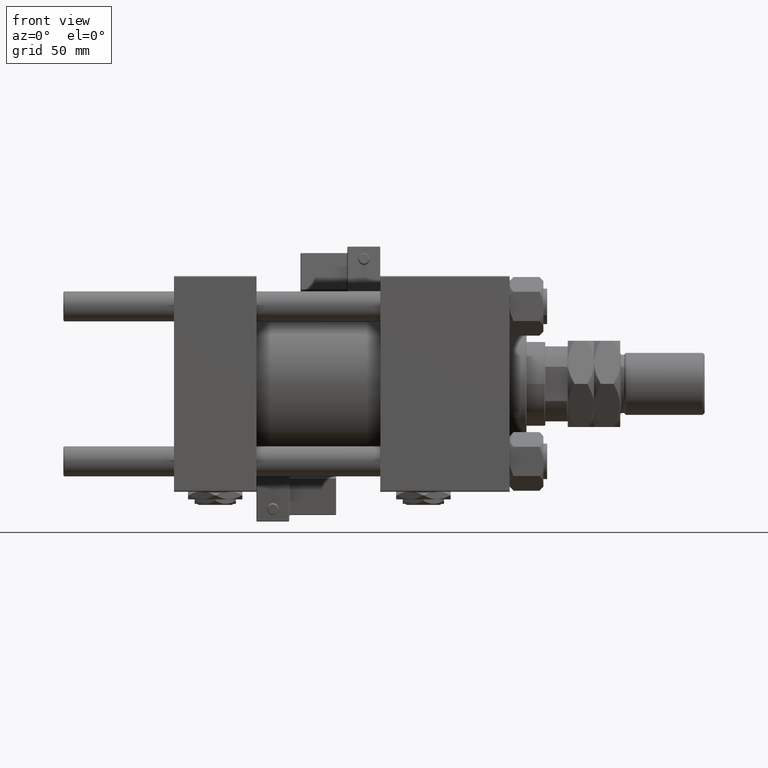
[diagram: clean part render]
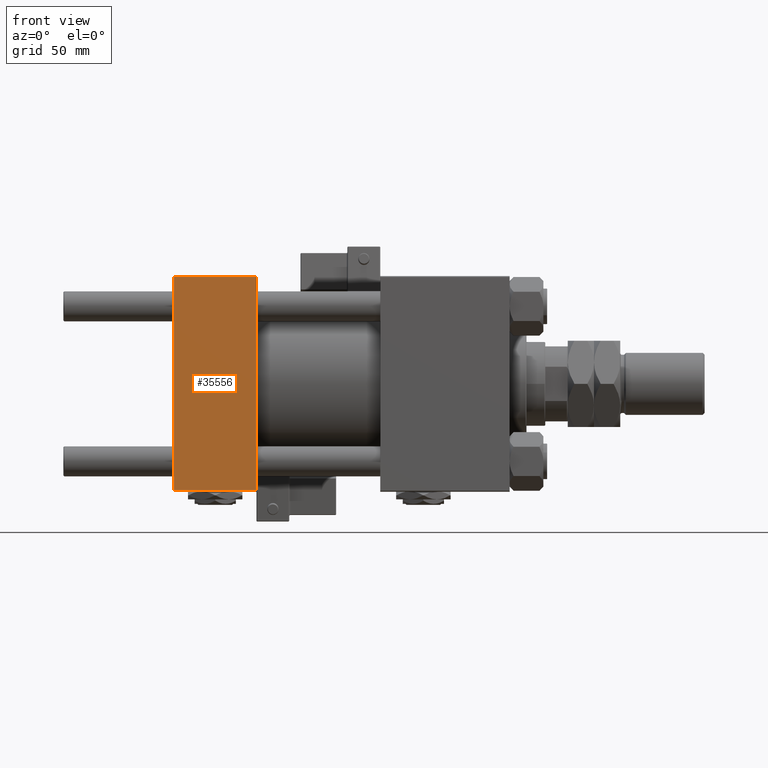
[diagram: same view with one face highlighted and labeled with its STEP entity id]
A machine part, front view. The second image highlights one B-rep face of the part: STEP entity #35556.
In plain terms, the highlighted planar face has unit normal (0, 1, 0).
Its self-contained STEP definition (entity closure, byte-faithful):
#2587 = PLANE ( 'NONE',  #11660 ) ;
#3112 = EDGE_CURVE ( 'NONE', #17237, #9774, #30064, .T. ) ;
#3917 = ORIENTED_EDGE ( 'NONE', *, *, #43841, .T. ) ;
#6843 = DIRECTION ( 'NONE',  ( -0.000000000000000000, 1.000000000000000000, 0.000000000000000000 ) ) ;
#9774 = VERTEX_POINT ( 'NONE', #22161 ) ;
#10243 = LINE ( 'NONE', #35825, #20017 ) ;
#11660 = AXIS2_PLACEMENT_3D ( 'NONE', #50274, #6843, #23373 ) ;
#16193 = EDGE_LOOP ( 'NONE', ( #32646, #3917, #45679, #38129 ) ) ;
#17237 = VERTEX_POINT ( 'NONE', #34835 ) ;
#18136 = DIRECTION ( 'NONE',  ( -1.000000000000000000, 0.000000000000000000, 0.000000000000000000 ) ) ;
#18963 = CARTESIAN_POINT ( 'NONE',  ( 44.00000000000000000, -57.50000000000000711, 57.00000000000000711 ) ) ;
#18969 = DIRECTION ( 'NONE',  ( 0.000000000000000000, 0.000000000000000000, -1.000000000000000000 ) ) ;
#19623 = DIRECTION ( 'NONE',  ( 1.000000000000000000, 0.000000000000000000, 0.000000000000000000 ) ) ;
#20017 = VECTOR ( 'NONE', #19623, 1000.000000000000000 ) ;
#20489 = VERTEX_POINT ( 'NONE', #21103 ) ;
#21103 = CARTESIAN_POINT ( 'NONE',  ( 44.00000000000000000, -57.50000000000000711, -57.00000000000000711 ) ) ;
#22161 = CARTESIAN_POINT ( 'NONE',  ( 0.000000000000000000, -57.50000000000000711, -57.00000000000000711 ) ) ;
#23373 = DIRECTION ( 'NONE',  ( 0.000000000000000000, -0.000000000000000000, 1.000000000000000000 ) ) ;
#25627 = LINE ( 'NONE', #47185, #27267 ) ;
#27267 = VECTOR ( 'NONE', #42641, 1000.000000000000000 ) ;
#27742 = LINE ( 'NONE', #18963, #33480 ) ;
#30064 = LINE ( 'NONE', #43392, #55654 ) ;
#32646 = ORIENTED_EDGE ( 'NONE', *, *, #3112, .T. ) ;
#33480 = VECTOR ( 'NONE', #18136, 1000.000000000000000 ) ;
#34835 = CARTESIAN_POINT ( 'NONE',  ( 0.000000000000000000, -57.50000000000000711, 57.00000000000000711 ) ) ;
#35556 = ADVANCED_FACE ( 'NONE', ( #39843 ), #2587, .F. ) ;
#35825 = CARTESIAN_POINT ( 'NONE',  ( 44.00000000000000000, -57.50000000000000711, -57.00000000000000711 ) ) ;
#38129 = ORIENTED_EDGE ( 'NONE', *, *, #39234, .T. ) ;
#39234 = EDGE_CURVE ( 'NONE', #40882, #17237, #27742, .T. ) ;
#39843 = FACE_OUTER_BOUND ( 'NONE', #16193, .T. ) ;
#40882 = VERTEX_POINT ( 'NONE', #48278 ) ;
#42641 = DIRECTION ( 'NONE',  ( 0.000000000000000000, 0.000000000000000000, -1.000000000000000000 ) ) ;
#43392 = CARTESIAN_POINT ( 'NONE',  ( 0.000000000000000000, -57.50000000000000711, 57.49999999999999289 ) ) ;
#43841 = EDGE_CURVE ( 'NONE', #9774, #20489, #10243, .T. ) ;
#45679 = ORIENTED_EDGE ( 'NONE', *, *, #50263, .F. ) ;
#47185 = CARTESIAN_POINT ( 'NONE',  ( 44.00000000000000000, -57.50000000000000711, 57.49999999999999289 ) ) ;
#48278 = CARTESIAN_POINT ( 'NONE',  ( 44.00000000000000000, -57.50000000000000711, 57.00000000000000711 ) ) ;
#50263 = EDGE_CURVE ( 'NONE', #40882, #20489, #25627, .T. ) ;
#50274 = CARTESIAN_POINT ( 'NONE',  ( 44.00000000000000000, -57.50000000000000711, 57.49999999999999289 ) ) ;
#55654 = VECTOR ( 'NONE', #18969, 1000.000000000000000 ) ;